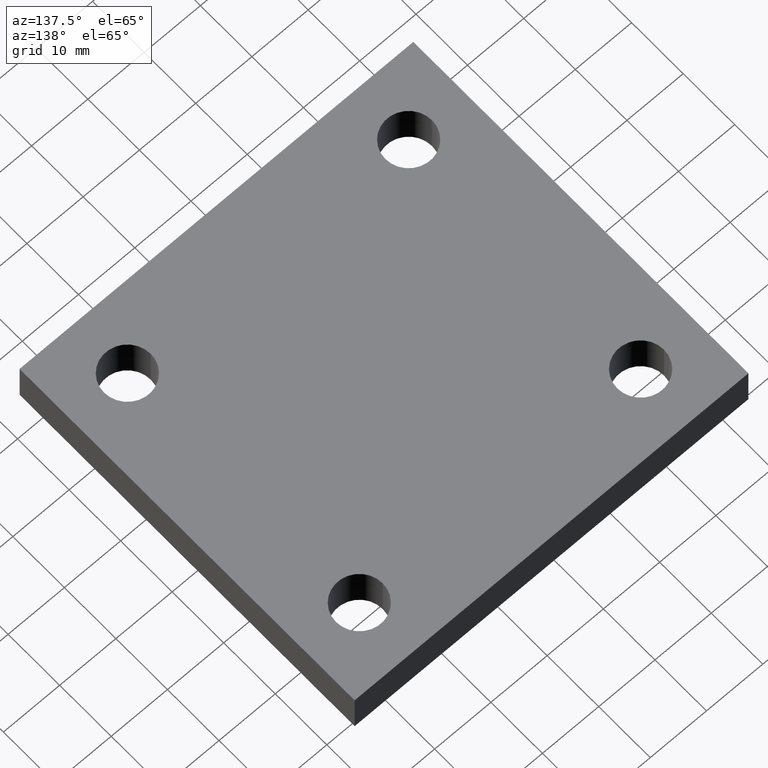
[diagram: clean part render]
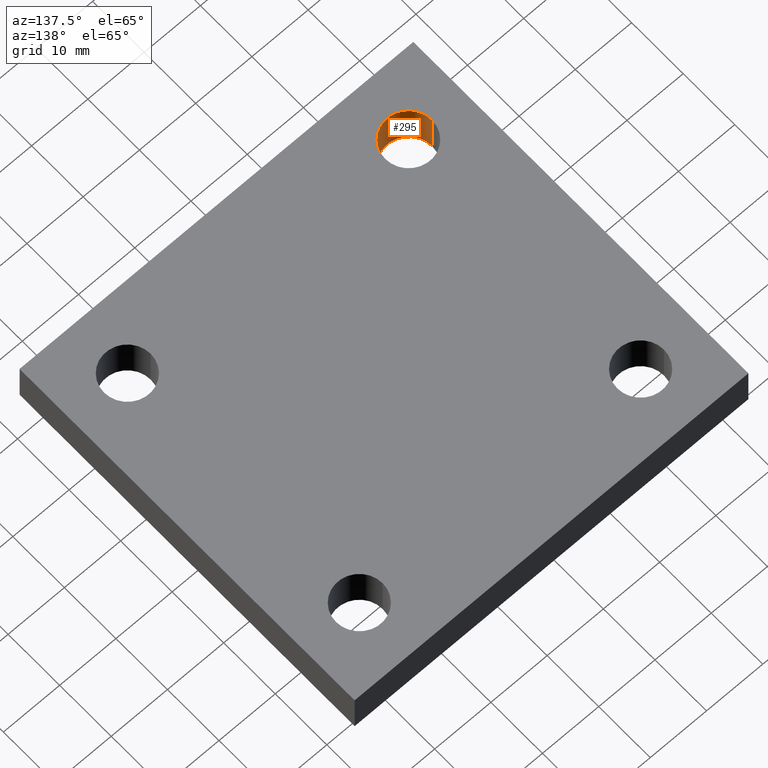
[diagram: same view with one face highlighted and labeled with its STEP entity id]
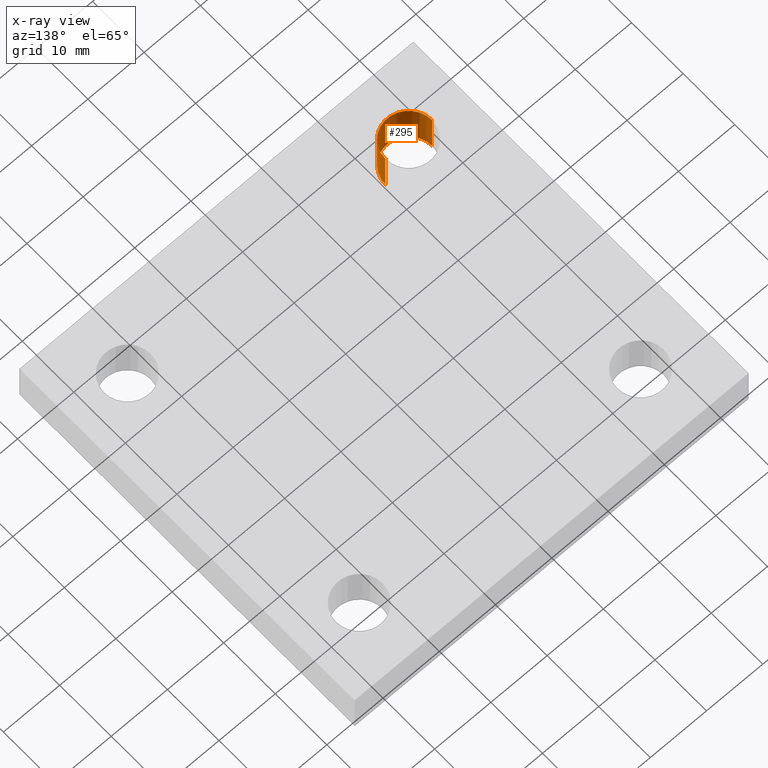
[diagram: x-ray of the same camera — body ghosted, the highlighted face saturated]
A machine part, auxiliary view. The second image highlights one B-rep face of the part: STEP entity #295.
The next image is the same camera in x-ray: the body ghosted, the highlighted face saturated — about 0% of this face is hidden behind the body in this view.
In plain terms, the highlighted face is a freeform B-spline surface patch.
Its self-contained STEP definition (entity closure, byte-faithful):
#233=CARTESIAN_POINT('',(21.789752180801720,-44.027373815230888,8.0));
#234=CARTESIAN_POINT('',(21.789752180801720,-44.027373815230888,0.0));
#235=CARTESIAN_POINT('',(21.789752180801720,-48.177373815230887,8.0));
#236=CARTESIAN_POINT('',(21.789752180801720,-48.177373815230887,0.0));
#237=CARTESIAN_POINT('',(25.939752180801719,-48.177373815230887,8.0));
#238=CARTESIAN_POINT('',(25.939752180801719,-48.177373815230887,0.0));
#239=CARTESIAN_POINT('',(30.089752180801721,-48.177373815230887,8.0));
#240=CARTESIAN_POINT('',(30.089752180801721,-48.177373815230887,0.0));
#241=CARTESIAN_POINT('',(30.089752180801717,-44.027373815230888,8.0));
#242=CARTESIAN_POINT('',(30.089752180801717,-44.027373815230888,0.0));
#243=CARTESIAN_POINT('',(30.089752180801721,-39.877373815230889,8.0));
#244=CARTESIAN_POINT('',(30.089752180801721,-39.877373815230889,0.0));
#245=CARTESIAN_POINT('',(25.939752180801719,-39.877373815230889,8.0));
#246=CARTESIAN_POINT('',(25.939752180801719,-39.877373815230889,0.0));
#247=CARTESIAN_POINT('',(21.789752180801720,-39.877373815230889,8.0));
#248=CARTESIAN_POINT('',(21.789752180801720,-39.877373815230889,0.0));
#249=CARTESIAN_POINT('',(21.789752180801720,-44.027373815230888,8.0));
#250=CARTESIAN_POINT('',(21.789752180801720,-44.027373815230888,0.0));
#258=(BOUNDED_SURFACE()B_SPLINE_SURFACE(1,2,((#233,#235,#237,#239,#241,#243,#245,#247,#249),(#234,#236,#238,#240,#242,#244,#246,#248,#250)),.UNSPECIFIED.,.F.,.T.,.U.)B_SPLINE_SURFACE_WITH_KNOTS((2,2),(3,2,2,2,3),(-0.963855421686747,0.963855421686747),(0.0,6.518804756198821,13.037609512397642,19.556414268596463,26.075219024795285),.UNSPECIFIED.)GEOMETRIC_REPRESENTATION_ITEM()RATIONAL_B_SPLINE_SURFACE(((1.0,0.707106781186548,1.0,0.707106781186548,1.0,0.707106781186548,1.0,0.707106781186548,1.0),(1.0,0.707106781186548,1.0,0.707106781186548,1.0,0.707106781186548,1.0,0.707106781186548,1.0)))REPRESENTATION_ITEM('')SURFACE());
#259=CARTESIAN_POINT('',(30.089752180801721,-44.027373815230888,0.0));
#260=VERTEX_POINT('',#259);
#261=CARTESIAN_POINT('',(30.089752180801721,-44.027373815230888,8.0));
#262=VERTEX_POINT('',#261);
#263=CARTESIAN_POINT('',(30.089752180801721,-44.027373815230888,0.0));
#264=DIRECTION('',(0.0,0.0,1.0));
#265=VECTOR('',#264,8.0);
#266=LINE('',#263,#265);
#267=EDGE_CURVE('',#260,#262,#266,.T.);
#268=ORIENTED_EDGE('',*,*,#267,.F.);
#269=CARTESIAN_POINT('',(21.789752180801720,-44.027373815230888,0.0));
#270=VERTEX_POINT('',#269);
#271=CARTESIAN_POINT('',(25.939752180801719,-44.027373815230888,0.0));
#272=DIRECTION('',(0.0,0.0,1.0));
#273=DIRECTION('',(1.0,0.0,0.0));
#274=AXIS2_PLACEMENT_3D('',#271,#272,#273);
#275=CIRCLE('',#274,4.150000000000000);
#276=EDGE_CURVE('',#270,#260,#275,.T.);
#277=ORIENTED_EDGE('',*,*,#276,.F.);
#278=CARTESIAN_POINT('',(21.789752180801720,-44.027373815230888,8.0));
#279=VERTEX_POINT('',#278);
#280=CARTESIAN_POINT('',(21.789752180801720,-44.027373815230888,8.0));
#281=DIRECTION('',(0.0,0.0,-1.0));
#282=VECTOR('',#281,8.0);
#283=LINE('',#280,#282);
#284=EDGE_CURVE('',#279,#270,#283,.T.);
#285=ORIENTED_EDGE('',*,*,#284,.F.);
#286=CARTESIAN_POINT('',(25.939752180801719,-44.027373815230888,8.0));
#287=DIRECTION('',(0.0,0.0,-1.0));
#288=DIRECTION('',(1.0,0.0,0.0));
#289=AXIS2_PLACEMENT_3D('',#286,#287,#288);
#290=CIRCLE('',#289,4.150000000000000);
#291=EDGE_CURVE('',#262,#279,#290,.T.);
#292=ORIENTED_EDGE('',*,*,#291,.F.);
#293=EDGE_LOOP('',(#268,#277,#285,#292));
#294=FACE_OUTER_BOUND('',#293,.T.);
#295=ADVANCED_FACE('',(#294),#258,.F.);